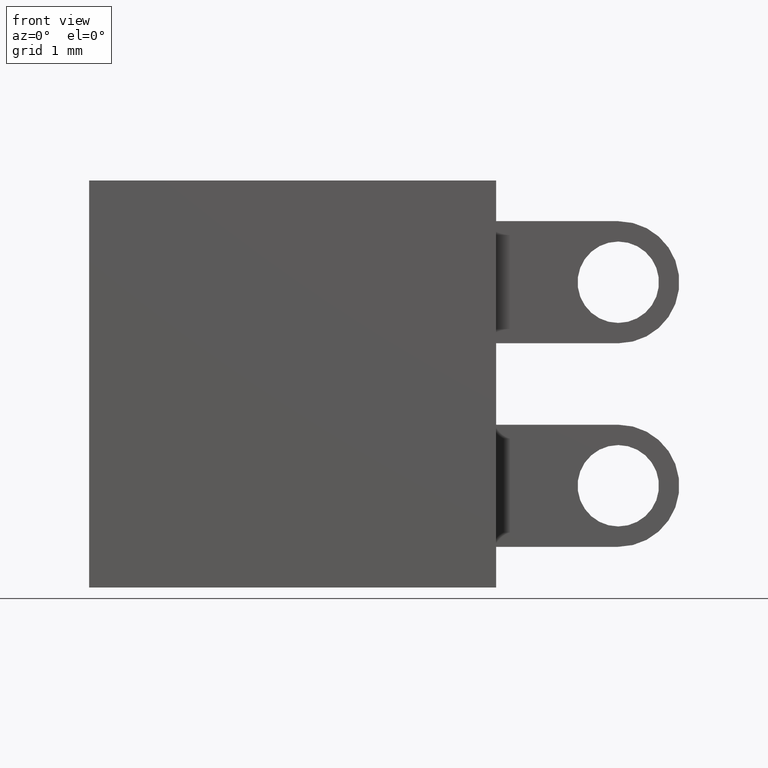
[diagram: clean part render]
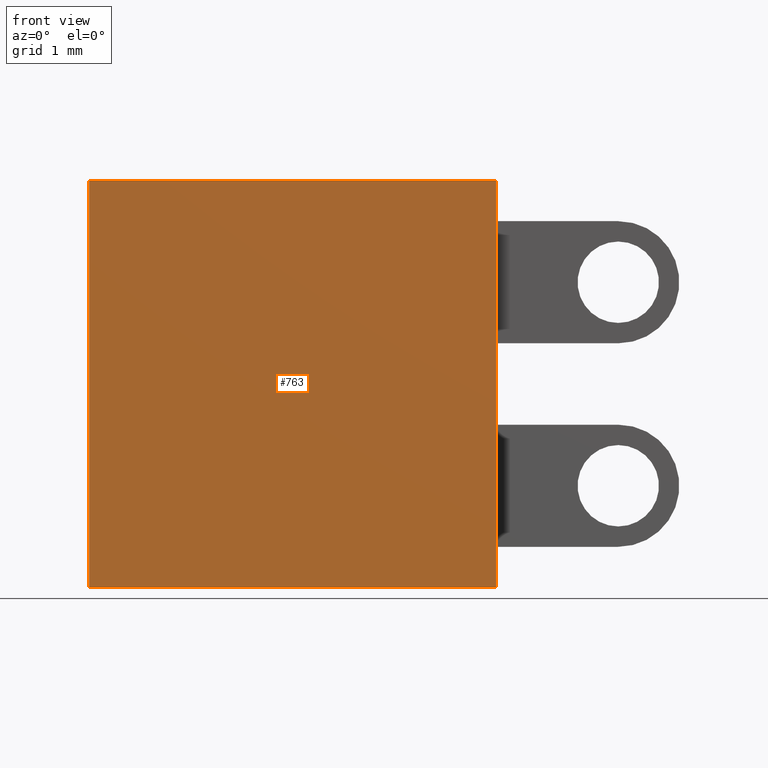
[diagram: same view with one face highlighted and labeled with its STEP entity id]
A machine part, front view. The second image highlights one B-rep face of the part: STEP entity #763.
In plain terms, the highlighted planar face has unit normal (0, -1, 0).
Its self-contained STEP definition (entity closure, byte-faithful):
#88 = AXIS2_PLACEMENT_3D ( 'NONE', #474, #1311, #771 ) ;
#110 = VECTOR ( 'NONE', #925, 1000.000000000000000 ) ;
#151 = VERTEX_POINT ( 'NONE', #849 ) ;
#199 = DIRECTION ( 'NONE',  ( -0.0000000000000000000, -0.0000000000000000000, 1.000000000000000000 ) ) ;
#205 = EDGE_LOOP ( 'NONE', ( #1354, #1222, #1367, #949 ) ) ;
#226 = VERTEX_POINT ( 'NONE', #940 ) ;
#228 = LINE ( 'NONE', #677, #767 ) ;
#370 = PLANE ( 'NONE',  #88 ) ;
#385 = CARTESIAN_POINT ( 'NONE',  ( -2.500000000000000400, -0.6501000000000000100, 2.499999999999999600 ) ) ;
#432 = CARTESIAN_POINT ( 'NONE',  ( -2.500000000000000400, -0.6501000000000000100, 2.499999999999999600 ) ) ;
#439 = FACE_OUTER_BOUND ( 'NONE', #205, .T. ) ;
#474 = CARTESIAN_POINT ( 'NONE',  ( 0.0000000000000000000, -0.6501000000000000100, 0.0000000000000000000 ) ) ;
#606 = VECTOR ( 'NONE', #1075, 1000.000000000000000 ) ;
#635 = VECTOR ( 'NONE', #199, 1000.000000000000000 ) ;
#660 = LINE ( 'NONE', #432, #110 ) ;
#661 = LINE ( 'NONE', #1023, #635 ) ;
#664 = EDGE_CURVE ( 'NONE', #1286, #226, #228, .T. ) ;
#677 = CARTESIAN_POINT ( 'NONE',  ( -2.500000000000000400, -0.6501000000000000100, 2.499999999999999600 ) ) ;
#763 = ADVANCED_FACE ( 'NONE', ( #439 ), #370, .T. ) ;
#767 = VECTOR ( 'NONE', #1318, 1000.000000000000000 ) ;
#771 = DIRECTION ( 'NONE',  ( 0.0000000000000000000, -0.0000000000000000000, -1.000000000000000000 ) ) ;
#780 = LINE ( 'NONE', #953, #606 ) ;
#849 = CARTESIAN_POINT ( 'NONE',  ( 2.500000000000000000, -0.6501000000000000100, 2.500000000000000400 ) ) ;
#910 = EDGE_CURVE ( 'NONE', #226, #943, #780, .T. ) ;
#925 = DIRECTION ( 'NONE',  ( -1.000000000000000000, -0.0000000000000000000, -1.734723475976806800E-016 ) ) ;
#940 = CARTESIAN_POINT ( 'NONE',  ( -2.500000000000000400, -0.6501000000000000100, -2.500000000000000400 ) ) ;
#943 = VERTEX_POINT ( 'NONE', #1180 ) ;
#949 = ORIENTED_EDGE ( 'NONE', *, *, #910, .T. ) ;
#953 = CARTESIAN_POINT ( 'NONE',  ( -2.500000000000000400, -0.6501000000000000100, -2.500000000000000400 ) ) ;
#1023 = CARTESIAN_POINT ( 'NONE',  ( 2.500000000000000000, -0.6501000000000000100, 2.500000000000000400 ) ) ;
#1045 = EDGE_CURVE ( 'NONE', #151, #1286, #660, .T. ) ;
#1075 = DIRECTION ( 'NONE',  ( 1.000000000000000000, 0.0000000000000000000, 1.734723475976806800E-016 ) ) ;
#1145 = EDGE_CURVE ( 'NONE', #943, #151, #661, .T. ) ;
#1180 = CARTESIAN_POINT ( 'NONE',  ( 2.500000000000000000, -0.6501000000000000100, -2.499999999999999600 ) ) ;
#1222 = ORIENTED_EDGE ( 'NONE', *, *, #1045, .T. ) ;
#1286 = VERTEX_POINT ( 'NONE', #385 ) ;
#1311 = DIRECTION ( 'NONE',  ( 0.0000000000000000000, -1.000000000000000000, 0.0000000000000000000 ) ) ;
#1318 = DIRECTION ( 'NONE',  ( 0.0000000000000000000, 0.0000000000000000000, -1.000000000000000000 ) ) ;
#1354 = ORIENTED_EDGE ( 'NONE', *, *, #1145, .T. ) ;
#1367 = ORIENTED_EDGE ( 'NONE', *, *, #664, .T. ) ;